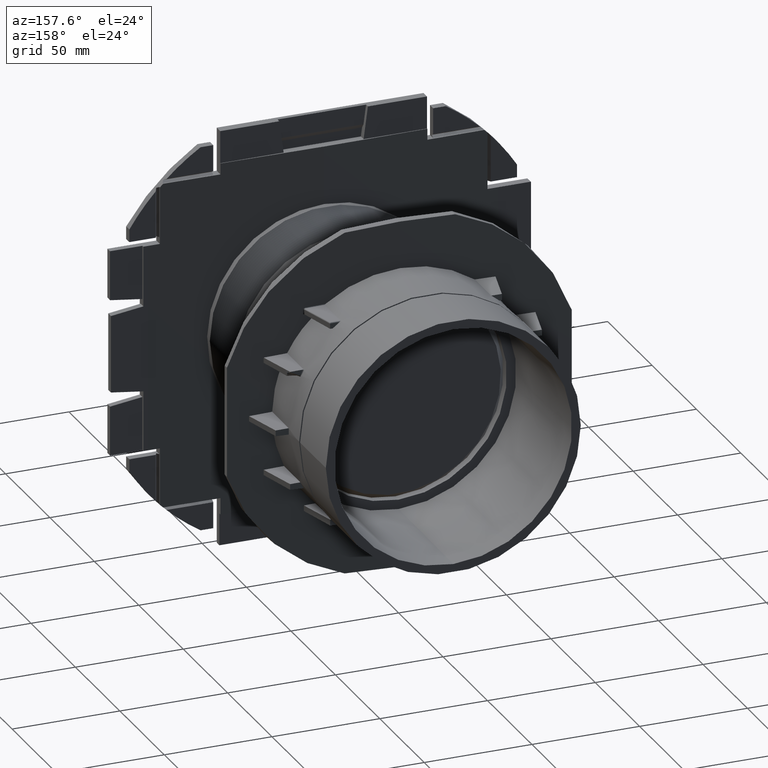
[diagram: clean part render]
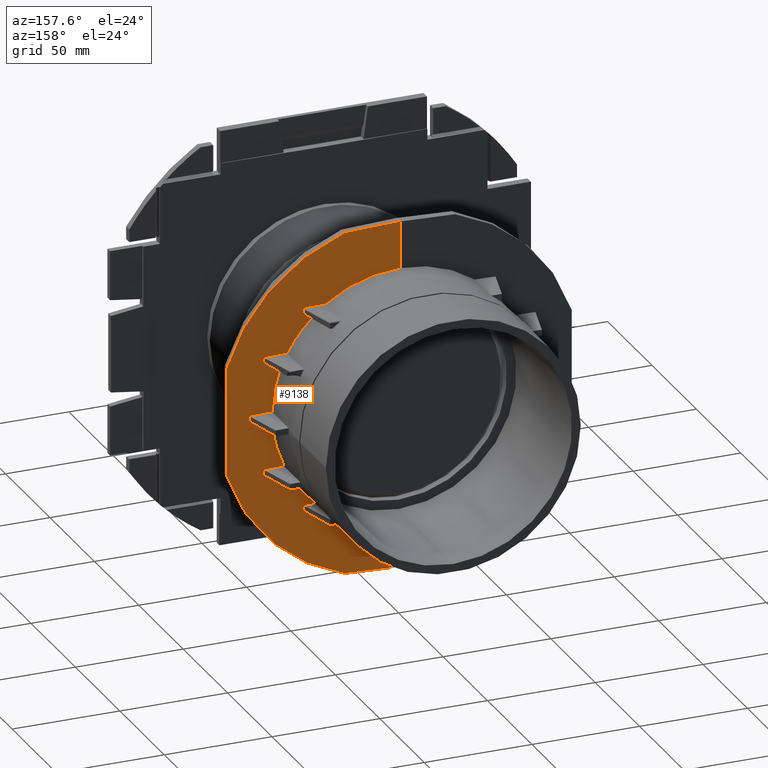
[diagram: same view with one face highlighted and labeled with its STEP entity id]
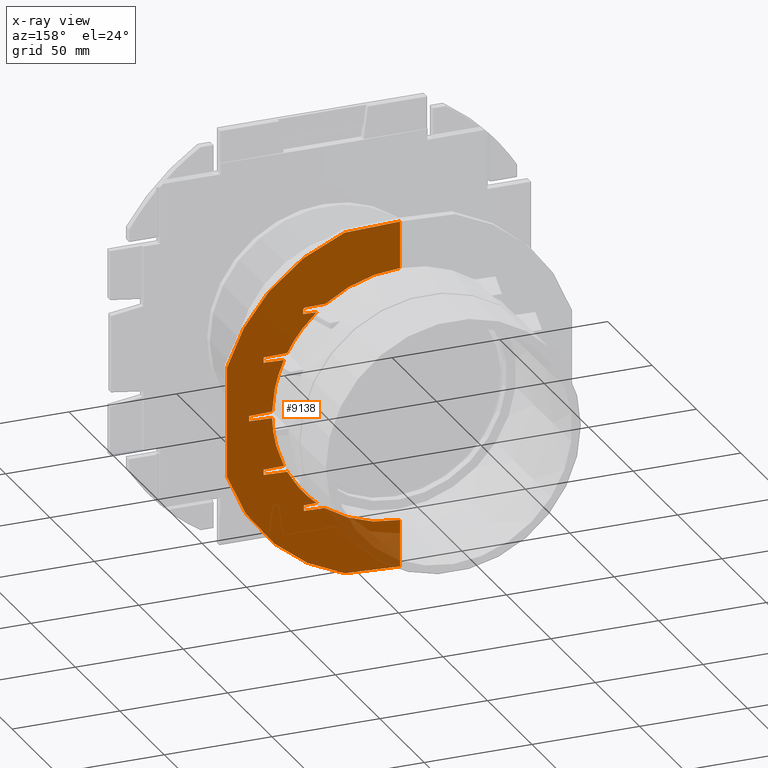
[diagram: x-ray of the same camera — body ghosted, the highlighted face saturated]
A machine part, auxiliary view. The second image highlights one B-rep face of the part: STEP entity #9138.
The next image is the same camera in x-ray: the body ghosted, the highlighted face saturated — about 7% of this face is hidden behind the body in this view.
In plain terms, the highlighted planar face has unit normal (0.0087, 1, 0).
Its self-contained STEP definition (entity closure, byte-faithful):
#137=ELLIPSE('',#9612,59.1522523365163,59.15);
#139=ELLIPSE('',#9614,59.1522523365163,59.15);
#141=ELLIPSE('',#9616,59.1522523365163,59.15);
#153=ELLIPSE('',#9628,59.1522523365163,59.15);
#155=ELLIPSE('',#9630,59.1522523365163,59.15);
#157=ELLIPSE('',#9632,59.1522523365163,59.15);
#213=ELLIPSE('',#9808,0.826472285149857,0.8);
#214=ELLIPSE('',#9809,84.0031985844019,84.);
#215=ELLIPSE('',#9810,84.0031985844019,84.);
#385=B_SPLINE_CURVE_WITH_KNOTS('',3,(#15849,#15850,#15851,#15852,#15853,
#15854,#15855,#15856,#15857,#15858),.UNSPECIFIED.,.F.,.F.,(4,2,2,2,4),(0.0802472633018967,
0.123377445702826,0.179885632971268,0.30114042257709,0.31150792848809),
 .UNSPECIFIED.);
#386=B_SPLINE_CURVE_WITH_KNOTS('',3,(#15860,#15861,#15862,#15863,#15864,
#15865,#15866,#15867),.UNSPECIFIED.,.F.,.F.,(4,1,1,2,4),(-0.112616159668797,
-0.0675696958012785,-0.045046463867519,0.,0.000254436259760488),
 .UNSPECIFIED.);
#721=FACE_OUTER_BOUND('',#1229,.T.);
#1229=EDGE_LOOP('',(#6312,#6313,#6314,#6315,#6316,#6317,#6318,#6319,#6320,
#6321,#6322,#6323,#6324,#6325,#6326,#6327,#6328,#6329,#6330,#6331,#6332,
#6333,#6334,#6335,#6336,#6337,#6338,#6339,#6340,#6341));
#1904=LINE('',#15587,#2771);
#1908=LINE('',#15598,#2775);
#2009=LINE('',#15830,#2876);
#2010=LINE('',#15832,#2877);
#2011=LINE('',#15834,#2878);
#2012=LINE('',#15835,#2879);
#2013=LINE('',#15837,#2880);
#2014=LINE('',#15839,#2881);
#2015=LINE('',#15840,#2882);
#2016=LINE('',#15842,#2883);
#2017=LINE('',#15844,#2884);
#2018=LINE('',#15845,#2885);
#2019=LINE('',#15847,#2886);
#2020=LINE('',#15870,#2887);
#2021=LINE('',#15872,#2888);
#2022=LINE('',#15876,#2889);
#2023=LINE('',#15879,#2890);
#2024=LINE('',#15881,#2891);
#2025=LINE('',#15882,#2892);
#2771=VECTOR('',#10916,10.);
#2775=VECTOR('',#10924,10.);
#2876=VECTOR('',#11111,10.);
#2877=VECTOR('',#11112,10.);
#2878=VECTOR('',#11113,10.);
#2879=VECTOR('',#11114,10.);
#2880=VECTOR('',#11115,10.);
#2881=VECTOR('',#11116,10.);
#2882=VECTOR('',#11117,10.);
#2883=VECTOR('',#11118,10.);
#2884=VECTOR('',#11119,10.);
#2885=VECTOR('',#11120,10.);
#2886=VECTOR('',#11121,10.);
#2887=VECTOR('',#11124,10.);
#2888=VECTOR('',#11125,10.);
#2889=VECTOR('',#11128,10.);
#2890=VECTOR('',#11131,10.);
#2891=VECTOR('',#11132,10.);
#2892=VECTOR('',#11133,10.);
#3526=VERTEX_POINT('',#13465);
#3527=VERTEX_POINT('',#13467);
#3530=VERTEX_POINT('',#13473);
#3531=VERTEX_POINT('',#13475);
#3534=VERTEX_POINT('',#13481);
#3535=VERTEX_POINT('',#13483);
#3556=VERTEX_POINT('',#13525);
#3557=VERTEX_POINT('',#13527);
#3562=VERTEX_POINT('',#13557);
#3563=VERTEX_POINT('',#13559);
#3566=VERTEX_POINT('',#13565);
#3567=VERTEX_POINT('',#13567);
#3890=VERTEX_POINT('',#15586);
#3895=VERTEX_POINT('',#15596);
#3983=VERTEX_POINT('',#15829);
#3984=VERTEX_POINT('',#15831);
#3985=VERTEX_POINT('',#15833);
#3986=VERTEX_POINT('',#15836);
#3987=VERTEX_POINT('',#15838);
#3988=VERTEX_POINT('',#15841);
#3989=VERTEX_POINT('',#15843);
#3990=VERTEX_POINT('',#15846);
#3991=VERTEX_POINT('',#15848);
#3992=VERTEX_POINT('',#15859);
#3993=VERTEX_POINT('',#15868);
#3994=VERTEX_POINT('',#15871);
#3995=VERTEX_POINT('',#15873);
#3996=VERTEX_POINT('',#15875);
#3997=VERTEX_POINT('',#15877);
#3998=VERTEX_POINT('',#15880);
#4407=EDGE_CURVE('',#3527,#3526,#137,.T.);
#4411=EDGE_CURVE('',#3530,#3531,#139,.T.);
#4415=EDGE_CURVE('',#3534,#3535,#141,.T.);
#4437=EDGE_CURVE('',#3556,#3557,#153,.T.);
#4443=EDGE_CURVE('',#3562,#3563,#155,.T.);
#4447=EDGE_CURVE('',#3567,#3566,#157,.T.);
#4783=EDGE_CURVE('',#3890,#3535,#1904,.T.);
#4789=EDGE_CURVE('',#3556,#3895,#1908,.T.);
#4906=EDGE_CURVE('',#3531,#3983,#2009,.T.);
#4907=EDGE_CURVE('',#3530,#3984,#2010,.F.);
#4908=EDGE_CURVE('',#3984,#3985,#2011,.T.);
#4909=EDGE_CURVE('',#3985,#3527,#2012,.T.);
#4910=EDGE_CURVE('',#3986,#3526,#2013,.T.);
#4911=EDGE_CURVE('',#3987,#3986,#2014,.T.);
#4912=EDGE_CURVE('',#3567,#3987,#2015,.T.);
#4913=EDGE_CURVE('',#3566,#3988,#2016,.F.);
#4914=EDGE_CURVE('',#3988,#3989,#2017,.T.);
#4915=EDGE_CURVE('',#3989,#3563,#2018,.T.);
#4916=EDGE_CURVE('',#3562,#3990,#2019,.F.);
#4917=EDGE_CURVE('',#3990,#3991,#385,.T.);
#4918=EDGE_CURVE('',#3992,#3991,#386,.T.);
#4919=EDGE_CURVE('',#3993,#3992,#213,.T.);
#4920=EDGE_CURVE('',#3557,#3993,#2020,.T.);
#4921=EDGE_CURVE('',#3994,#3895,#2021,.T.);
#4922=EDGE_CURVE('',#3994,#3995,#214,.T.);
#4923=EDGE_CURVE('',#3995,#3996,#2022,.T.);
#4924=EDGE_CURVE('',#3996,#3997,#215,.T.);
#4925=EDGE_CURVE('',#3997,#3890,#2023,.T.);
#4926=EDGE_CURVE('',#3534,#3998,#2024,.T.);
#4927=EDGE_CURVE('',#3983,#3998,#2025,.T.);
#6312=ORIENTED_EDGE('',*,*,#4906,.F.);
#6313=ORIENTED_EDGE('',*,*,#4411,.F.);
#6314=ORIENTED_EDGE('',*,*,#4907,.T.);
#6315=ORIENTED_EDGE('',*,*,#4908,.T.);
#6316=ORIENTED_EDGE('',*,*,#4909,.T.);
#6317=ORIENTED_EDGE('',*,*,#4407,.T.);
#6318=ORIENTED_EDGE('',*,*,#4910,.F.);
#6319=ORIENTED_EDGE('',*,*,#4911,.F.);
#6320=ORIENTED_EDGE('',*,*,#4912,.F.);
#6321=ORIENTED_EDGE('',*,*,#4447,.T.);
#6322=ORIENTED_EDGE('',*,*,#4913,.T.);
#6323=ORIENTED_EDGE('',*,*,#4914,.T.);
#6324=ORIENTED_EDGE('',*,*,#4915,.T.);
#6325=ORIENTED_EDGE('',*,*,#4443,.F.);
#6326=ORIENTED_EDGE('',*,*,#4916,.T.);
#6327=ORIENTED_EDGE('',*,*,#4917,.T.);
#6328=ORIENTED_EDGE('',*,*,#4918,.F.);
#6329=ORIENTED_EDGE('',*,*,#4919,.F.);
#6330=ORIENTED_EDGE('',*,*,#4920,.F.);
#6331=ORIENTED_EDGE('',*,*,#4437,.F.);
#6332=ORIENTED_EDGE('',*,*,#4789,.T.);
#6333=ORIENTED_EDGE('',*,*,#4921,.F.);
#6334=ORIENTED_EDGE('',*,*,#4922,.T.);
#6335=ORIENTED_EDGE('',*,*,#4923,.T.);
#6336=ORIENTED_EDGE('',*,*,#4924,.T.);
#6337=ORIENTED_EDGE('',*,*,#4925,.T.);
#6338=ORIENTED_EDGE('',*,*,#4783,.T.);
#6339=ORIENTED_EDGE('',*,*,#4415,.F.);
#6340=ORIENTED_EDGE('',*,*,#4926,.T.);
#6341=ORIENTED_EDGE('',*,*,#4927,.F.);
#8304=PLANE('',#9807);
#9138=ADVANCED_FACE('',(#721),#8304,.T.);
#9612=AXIS2_PLACEMENT_3D('',#13468,#10447,#10448);
#9614=AXIS2_PLACEMENT_3D('',#13476,#10453,#10454);
#9616=AXIS2_PLACEMENT_3D('',#13484,#10459,#10460);
#9628=AXIS2_PLACEMENT_3D('',#13528,#10493,#10494);
#9630=AXIS2_PLACEMENT_3D('',#13560,#10499,#10500);
#9632=AXIS2_PLACEMENT_3D('',#13568,#10505,#10506);
#9807=AXIS2_PLACEMENT_3D('',#15828,#11109,#11110);
#9808=AXIS2_PLACEMENT_3D('',#15869,#11122,#11123);
#9809=AXIS2_PLACEMENT_3D('',#15874,#11126,#11127);
#9810=AXIS2_PLACEMENT_3D('',#15878,#11129,#11130);
#10447=DIRECTION('center_axis',(-0.00872653549837393,-0.999961923064171,
0.));
#10448=DIRECTION('ref_axis',(-0.999961923064171,0.00872653549837393,0.));
#10453=DIRECTION('center_axis',(0.00872653549837393,0.999961923064171,0.));
#10454=DIRECTION('ref_axis',(-0.999961923064171,0.00872653549837393,0.));
#10459=DIRECTION('center_axis',(0.00872653549837393,0.999961923064171,0.));
#10460=DIRECTION('ref_axis',(-0.999961923064171,0.00872653549837393,0.));
#10493=DIRECTION('center_axis',(0.00872653549837393,0.999961923064171,0.));
#10494=DIRECTION('ref_axis',(-0.999961923064171,0.00872653549837393,0.));
#10499=DIRECTION('center_axis',(0.00872653549837393,0.999961923064171,0.));
#10500=DIRECTION('ref_axis',(-0.999961923064171,0.00872653549837393,0.));
#10505=DIRECTION('center_axis',(-0.00872653549837393,-0.999961923064171,
0.));
#10506=DIRECTION('ref_axis',(-0.999961923064171,0.00872653549837393,0.));
#10916=DIRECTION('',(0.,0.,1.));
#10924=DIRECTION('',(0.,0.,1.));
#11109=DIRECTION('center_axis',(0.00872653549837393,0.999961923064171,0.));
#11110=DIRECTION('ref_axis',(0.,0.,1.));
#11111=DIRECTION('',(0.999619287168872,-0.00872354536021529,-0.0261759522528507));
#11112=DIRECTION('',(-0.999619287168872,0.00872354536021529,-0.0261759522528506));
#11113=DIRECTION('',(0.,0.,1.));
#11114=DIRECTION('',(-0.999619287168872,0.00872354536021529,0.0261759522528506));
#11115=DIRECTION('',(-0.999619287168872,0.00872354536021529,-0.0261759522528507));
#11116=DIRECTION('',(0.,0.,-1.));
#11117=DIRECTION('',(0.999619287168872,-0.00872354536021529,-0.0261759522528507));
#11118=DIRECTION('',(-0.999619287168872,0.00872354536021529,-0.0261759522528506));
#11119=DIRECTION('',(0.,0.,1.));
#11120=DIRECTION('',(-0.999619287168872,0.00872354536021529,0.0261759522528506));
#11121=DIRECTION('',(-0.999619287168872,0.00872354536021529,-0.0261759522528506));
#11122=DIRECTION('center_axis',(0.00872653549837393,0.999961923064171,0.));
#11123=DIRECTION('ref_axis',(0.999641951979872,-0.00872374315302439,-0.0252955361135454));
#11124=DIRECTION('',(0.999619287168872,-0.0087235453602153,-0.0261759522528506));
#11125=DIRECTION('',(-0.999200685146076,0.00871989227570541,0.0390122324702343));
#11126=DIRECTION('center_axis',(0.00872653549837393,0.999961923064171,0.));
#11127=DIRECTION('ref_axis',(0.999961923064171,-0.00872653549837393,0.));
#11128=DIRECTION('',(0.,0.,-1.));
#11129=DIRECTION('center_axis',(0.00872653549837393,0.999961923064171,0.));
#11130=DIRECTION('ref_axis',(0.999961923064171,-0.00872653549837393,0.));
#11131=DIRECTION('',(-0.999200685146076,0.00871989227570541,-0.0390122324702343));
#11132=DIRECTION('',(0.999619287168872,-0.00872354536021529,0.0261759522528507));
#11133=DIRECTION('',(0.,0.,-1.));
#13465=CARTESIAN_POINT('',(59.1309774991078,0.983971777026953,-1.5));
#13467=CARTESIAN_POINT('',(53.6682862731358,1.03164396113775,-24.8684046232312));
#13468=CARTESIAN_POINT('Origin',(0.,1.5,0.));
#13473=CARTESIAN_POINT('',(52.173504039463,1.04468872806699,-27.8684046232312));
#13475=CARTESIAN_POINT('',(38.6444449075899,1.1627550384442,-44.7809041644343));
#13476=CARTESIAN_POINT('Origin',(0.,1.5,0.));
#13481=CARTESIAN_POINT('',(34.8670001180076,1.19572029970978,-47.7809041644343));
#13483=CARTESIAN_POINT('',(0.,1.5,-59.15));
#13484=CARTESIAN_POINT('Origin',(0.,1.5,0.));
#13525=CARTESIAN_POINT('',(0.,1.5,59.15));
#13527=CARTESIAN_POINT('',(34.4363366594415,1.19947864277499,48.092215768018));
#13528=CARTESIAN_POINT('Origin',(0.,1.5,0.));
#13557=CARTESIAN_POINT('',(38.6444449075899,1.1627550384442,44.7809041644343));
#13559=CARTESIAN_POINT('',(52.173504039463,1.04468872806699,27.8684046232312));
#13560=CARTESIAN_POINT('Origin',(0.,1.5,0.));
#13565=CARTESIAN_POINT('',(53.6682862731358,1.03164396113775,24.8684046232312));
#13567=CARTESIAN_POINT('',(59.1309774991078,0.983971777026953,1.5));
#13568=CARTESIAN_POINT('Origin',(0.,1.5,0.));
#15586=CARTESIAN_POINT('',(0.,1.5,-81.));
#15587=CARTESIAN_POINT('',(0.,1.5,34.5375));
#15596=CARTESIAN_POINT('',(0.,1.5,81.));
#15598=CARTESIAN_POINT('',(0.,1.5,34.5375));
#15828=CARTESIAN_POINT('Origin',(0.,1.5,69.075));
#15829=CARTESIAN_POINT('',(44.4636338863534,1.11197174557709,-44.9332849906285));
#15830=CARTESIAN_POINT('',(15.850980243926,1.36167059105733,-44.1840362864616));
#15831=CARTESIAN_POINT('',(63.0546082113351,0.949730770541581,-27.5834728828004));
#15832=CARTESIAN_POINT('',(27.8871420400418,1.25663259835444,-28.5043653937489));
#15833=CARTESIAN_POINT('',(63.0546082113351,0.949730770541583,-25.114194113328));
#15834=CARTESIAN_POINT('',(63.0546082113351,0.94973077054159,21.3532976883844));
#15835=CARTESIAN_POINT('',(25.3905393715976,1.27842011976801,-24.1279257607142));
#15836=CARTESIAN_POINT('',(69.8022888365422,0.890844653831138,-1.22056187827757));
#15837=CARTESIAN_POINT('',(30.9108097626802,1.23024544989579,-2.2389710990154));
#15838=CARTESIAN_POINT('',(69.8022888365422,0.890844653831137,1.22056187827757));
#15839=CARTESIAN_POINT('',(69.8022888365422,0.890844653831137,34.5375));
#15840=CARTESIAN_POINT('',(29.10339422917,1.2460185262997,2.28629994041882));
#15841=CARTESIAN_POINT('',(63.0546082113351,0.94973077054158,25.114194113328));
#15842=CARTESIAN_POINT('',(27.1979549051078,1.2626470433641,24.1752546021176));
#15843=CARTESIAN_POINT('',(63.0546082113351,0.949730770541584,27.5834728828004));
#15844=CARTESIAN_POINT('',(63.0546082113351,0.94973077054159,47.7217023116156));
#15845=CARTESIAN_POINT('',(26.0797265065316,1.27240567475835,28.5516942351523));
#15846=CARTESIAN_POINT('',(44.7910650918761,1.10911429673592,44.9418590784956));
#15847=CARTESIAN_POINT('',(17.6583957774362,1.34589751465342,44.231365127865));
#15848=CARTESIAN_POINT('',(44.8505076304275,1.10859554956084,47.0194196796703));
#15849=CARTESIAN_POINT('Ctrl Pts',(44.7910650918761,1.10911429673593,44.9418590784957));
#15850=CARTESIAN_POINT('Ctrl Pts',(44.7960621627587,1.10907068795899,45.1316487312365));
#15851=CARTESIAN_POINT('Ctrl Pts',(44.8009544333554,1.10902799376031,45.3172641644524));
#15852=CARTESIAN_POINT('Ctrl Pts',(44.8109361228801,1.1089408848755,45.695314158178));
#15853=CARTESIAN_POINT('Ctrl Pts',(44.8192076456601,1.10886870038979,46.0080611429453));
#15854=CARTESIAN_POINT('Ctrl Pts',(44.8391219848552,1.10869491058449,46.7512326608589));
#15855=CARTESIAN_POINT('Ctrl Pts',(44.8448698011605,1.10864475015148,46.9577456858346));
#15856=CARTESIAN_POINT('Ctrl Pts',(44.8489769919641,1.10860890724035,47.011139548162));
#15857=CARTESIAN_POINT('Ctrl Pts',(44.8493748770341,1.10860543494995,47.0153447593686));
#15858=CARTESIAN_POINT('Ctrl Pts',(44.8505076304275,1.10859554956083,47.0194196796703));
#15859=CARTESIAN_POINT('',(44.098654368383,1.11515687357675,47.8131636962045));
#15860=CARTESIAN_POINT('Ctrl Pts',(44.098654368383,1.11515687357675,47.8131636962045));
#15861=CARTESIAN_POINT('Ctrl Pts',(44.2431981835938,1.11389545881144,47.7725191126502));
#15862=CARTESIAN_POINT('Ctrl Pts',(44.4429326491549,1.11215240253723,47.652207614647));
#15863=CARTESIAN_POINT('Ctrl Pts',(44.686950492255,1.1100228910819,47.362711144119));
#15864=CARTESIAN_POINT('Ctrl Pts',(44.7856635656788,1.10916143514091,47.1577547897076));
#15865=CARTESIAN_POINT('Ctrl Pts',(44.8497881283589,1.10860182856027,47.0209556609492));
#15866=CARTESIAN_POINT('Ctrl Pts',(44.8501478134903,1.10859868963567,47.0201876841721));
#15867=CARTESIAN_POINT('Ctrl Pts',(44.8505076304275,1.10859554956083,47.0194196796703));
#15868=CARTESIAN_POINT('',(43.8903213312003,1.11697496844869,47.8446544668871));
#15869=CARTESIAN_POINT('Origin',(43.8693339841031,1.11715812225209,47.0449298059194));
#15870=CARTESIAN_POINT('',(17.0678751768814,1.35105090986218,48.5470249381778));
#15871=CARTESIAN_POINT('',(25.6124969497314,1.27648312532848,80.));
#15872=CARTESIAN_POINT('',(13.0376992394078,1.38622172244201,80.4909633658524));
#15873=CARTESIAN_POINT('',(80.,0.801850576739297,25.6124969497313));
#15874=CARTESIAN_POINT('Origin',(0.,1.5,0.));
#15875=CARTESIAN_POINT('',(80.,0.801850576739297,-25.6124969497314));
#15876=CARTESIAN_POINT('',(80.,0.801850576739297,21.7312515251343));
#15877=CARTESIAN_POINT('',(25.6124969497312,1.27648312532848,-80.0000000000001));
#15878=CARTESIAN_POINT('Origin',(0.,1.5,0.));
#15879=CARTESIAN_POINT('',(15.730315227634,1.36272361870148,-80.3858343738017));
#15880=CARTESIAN_POINT('',(44.4636338863534,1.11197174557709,-47.5296074652482));
#15881=CARTESIAN_POINT('',(18.8674400172964,1.33534634541898,-48.1998673903731));
#15882=CARTESIAN_POINT('',(44.4636338863534,1.11197174557709,11.3970479177829));